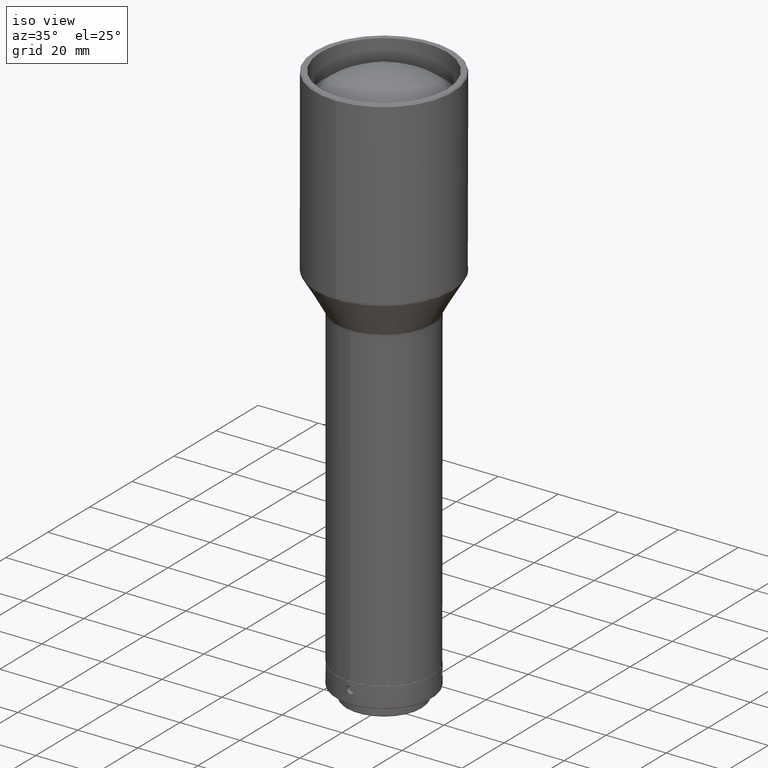
[diagram: clean part render]
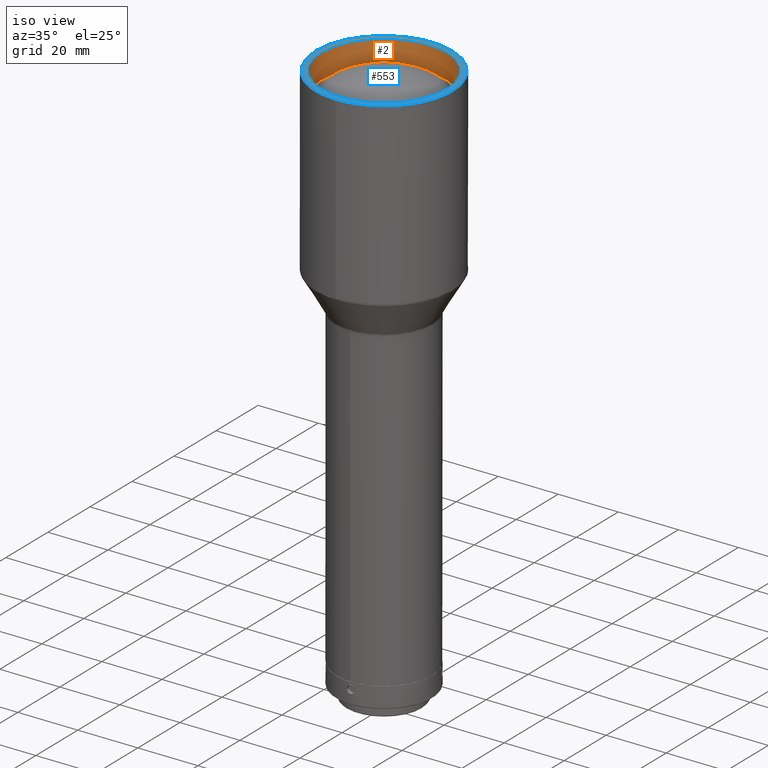
[diagram: same view with the hole feature highlighted: cylindrical wall and planar end face, labeled with their STEP entity ids]
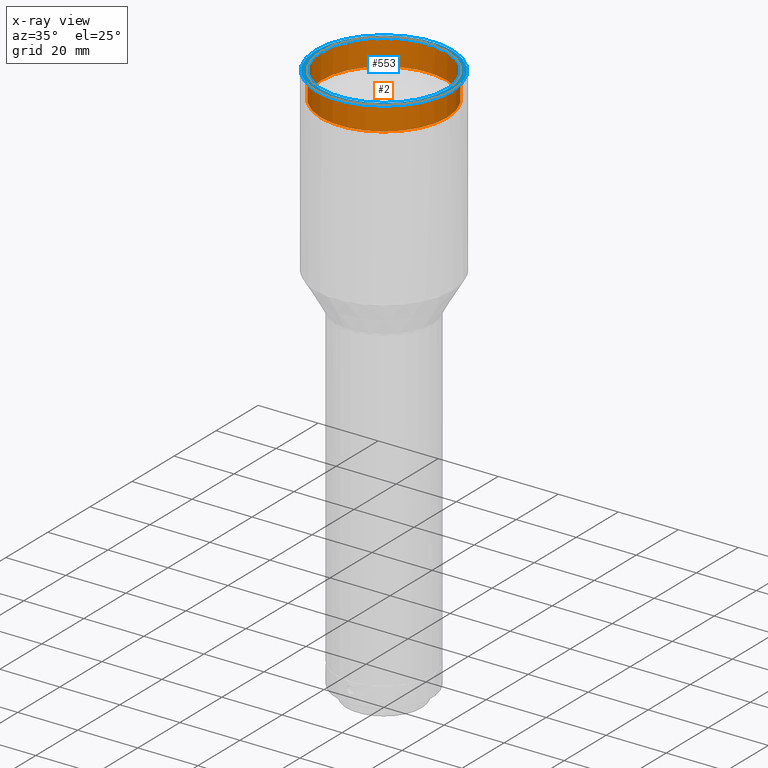
[diagram: x-ray of the same camera — body ghosted, the hole faces saturated]
A machine part, iso view. The highlighted faces form one hole feature of diameter 42 mm: the cylindrical wall (entity #2, orange) and its adjacent planar end face (entity #553, blue) — they share a circular edge in the B-rep.
The next image is the same camera in x-ray (body ghosted, the hole faces saturated) — the bore reads through the body.
Wall:
#2 = ADVANCED_FACE ( 'NONE', ( #199, #376 ), #688, .F. ) ;
#132 = DIRECTION ( 'NONE',  ( -0.000000000000000000, -0.000000000000000000, 1.000000000000000000 ) ) ;
#142 = CARTESIAN_POINT ( 'NONE',  ( -6.938893903907228378E-15, -1.766194502186925708E-14, -669.9999999999998863 ) ) ;
#153 = EDGE_LOOP ( 'NONE', ( #462 ) ) ;
#199 = FACE_OUTER_BOUND ( 'NONE', #153, .T. ) ;
#254 = AXIS2_PLACEMENT_3D ( 'NONE', #1031, #132, #382 ) ;
#260 = CARTESIAN_POINT ( 'NONE',  ( 20.99999999999999289, -1.766194502186925708E-14, -669.9999999999998863 ) ) ;
#371 = EDGE_LOOP ( 'NONE', ( #778 ) ) ;
#376 = FACE_OUTER_BOUND ( 'NONE', #371, .T. ) ;
#382 = DIRECTION ( 'NONE',  ( 1.000000000000000000, 0.000000000000000000, 0.000000000000000000 ) ) ;
#443 = CIRCLE ( 'NONE', #1047, 21.00000000000000000 ) ;
#462 = ORIENTED_EDGE ( 'NONE', *, *, #980, .T. ) ;
#476 = DIRECTION ( 'NONE',  ( 1.000000000000000000, 0.000000000000000000, 0.000000000000000000 ) ) ;
#483 = VERTEX_POINT ( 'NONE', #260 ) ;
#510 = DIRECTION ( 'NONE',  ( -1.000000000000000000, 0.000000000000000000, 0.000000000000000000 ) ) ;
#560 = VERTEX_POINT ( 'NONE', #800 ) ;
#605 = CIRCLE ( 'NONE', #711, 21.00000000000000000 ) ;
#688 = CYLINDRICAL_SURFACE ( 'NONE', #254, 21.00000000000000000 ) ;
#711 = AXIS2_PLACEMENT_3D ( 'NONE', #142, #1036, #476 ) ;
#778 = ORIENTED_EDGE ( 'NONE', *, *, #1055, .T. ) ;
#800 = CARTESIAN_POINT ( 'NONE',  ( -21.00000000000000711, -1.766194502186925708E-14, -678.5805314758425766 ) ) ;
#922 = CARTESIAN_POINT ( 'NONE',  ( -6.938893903907228378E-15, -1.766194502186925708E-14, -678.5805314758425766 ) ) ;
#980 = EDGE_CURVE ( 'NONE', #560, #560, #443, .T. ) ;
#1022 = DIRECTION ( 'NONE',  ( 0.000000000000000000, 0.000000000000000000, -1.000000000000000000 ) ) ;
#1031 = CARTESIAN_POINT ( 'NONE',  ( -6.938893903907228378E-15, -1.766194502186925708E-14, -678.9999999999998863 ) ) ;
#1036 = DIRECTION ( 'NONE',  ( 0.000000000000000000, 0.000000000000000000, 1.000000000000000000 ) ) ;
#1047 = AXIS2_PLACEMENT_3D ( 'NONE', #922, #1022, #510 ) ;
#1055 = EDGE_CURVE ( 'NONE', #483, #483, #605, .T. ) ;
End face:
#45 = ORIENTED_EDGE ( 'NONE', *, *, #1055, .F. ) ;
#142 = CARTESIAN_POINT ( 'NONE',  ( -6.938893903907228378E-15, -1.766194502186925708E-14, -669.9999999999998863 ) ) ;
#161 = CARTESIAN_POINT ( 'NONE',  ( -6.938893903907228378E-15, -1.766194502186925708E-14, -669.9999999999998863 ) ) ;
#175 = FACE_OUTER_BOUND ( 'NONE', #949, .T. ) ;
#260 = CARTESIAN_POINT ( 'NONE',  ( 20.99999999999999289, -1.766194502186925708E-14, -669.9999999999998863 ) ) ;
#346 = AXIS2_PLACEMENT_3D ( 'NONE', #161, #780, #802 ) ;
#355 = EDGE_CURVE ( 'NONE', #862, #862, #364, .T. ) ;
#364 = CIRCLE ( 'NONE', #346, 22.70000000000002416 ) ;
#391 = CARTESIAN_POINT ( 'NONE',  ( -22.70000000000003126, -1.766194502186925708E-14, -669.9999999999998863 ) ) ;
#438 = DIRECTION ( 'NONE',  ( 0.000000000000000000, 1.000000000000000000, -2.334120334303111441E-17 ) ) ;
#450 = ORIENTED_EDGE ( 'NONE', *, *, #355, .F. ) ;
#476 = DIRECTION ( 'NONE',  ( 1.000000000000000000, 0.000000000000000000, 0.000000000000000000 ) ) ;
#483 = VERTEX_POINT ( 'NONE', #260 ) ;
#499 = DIRECTION ( 'NONE',  ( 4.167369410208019699E-33, -2.334120334303111441E-17, -1.000000000000000000 ) ) ;
#526 = EDGE_LOOP ( 'NONE', ( #45 ) ) ;
#553 = ADVANCED_FACE ( 'NONE', ( #632, #175 ), #586, .F. ) ;
#586 = PLANE ( 'NONE',  #588 ) ;
#588 = AXIS2_PLACEMENT_3D ( 'NONE', #840, #499, #438 ) ;
#605 = CIRCLE ( 'NONE', #711, 21.00000000000000000 ) ;
#632 = FACE_BOUND ( 'NONE', #526, .T. ) ;
#711 = AXIS2_PLACEMENT_3D ( 'NONE', #142, #1036, #476 ) ;
#780 = DIRECTION ( 'NONE',  ( 0.000000000000000000, -0.000000000000000000, -1.000000000000000000 ) ) ;
#802 = DIRECTION ( 'NONE',  ( -1.000000000000000000, 0.000000000000000000, 0.000000000000000000 ) ) ;
#840 = CARTESIAN_POINT ( 'NONE',  ( -5.432108045951751399E-15, -21.75000000000000711, -669.9999999999998863 ) ) ;
#862 = VERTEX_POINT ( 'NONE', #391 ) ;
#949 = EDGE_LOOP ( 'NONE', ( #450 ) ) ;
#1036 = DIRECTION ( 'NONE',  ( 0.000000000000000000, 0.000000000000000000, 1.000000000000000000 ) ) ;
#1055 = EDGE_CURVE ( 'NONE', #483, #483, #605, .T. ) ;